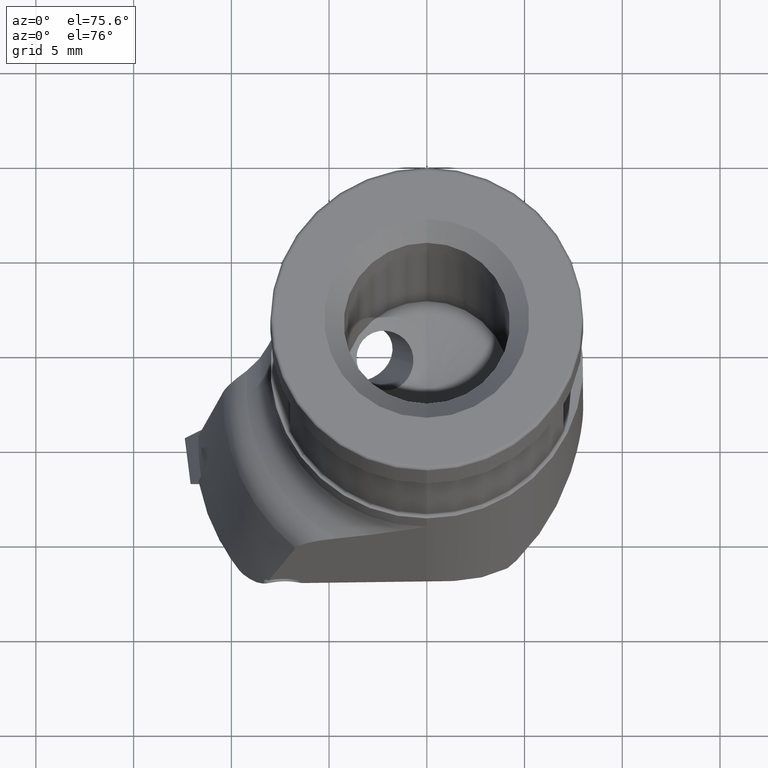
[diagram: clean part render]
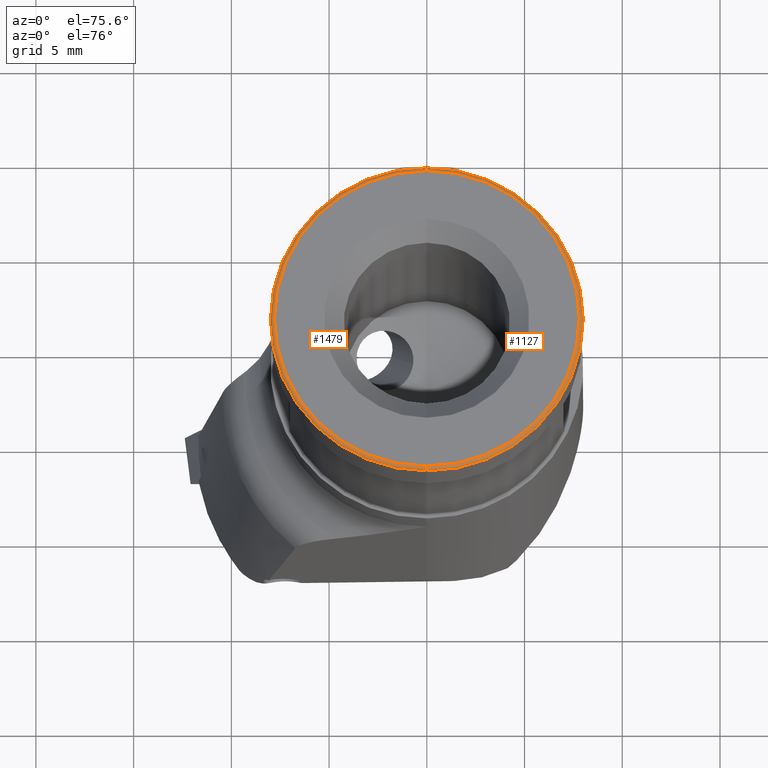
[diagram: same view with one multi-face feature highlighted, each face labeled with its STEP entity id]
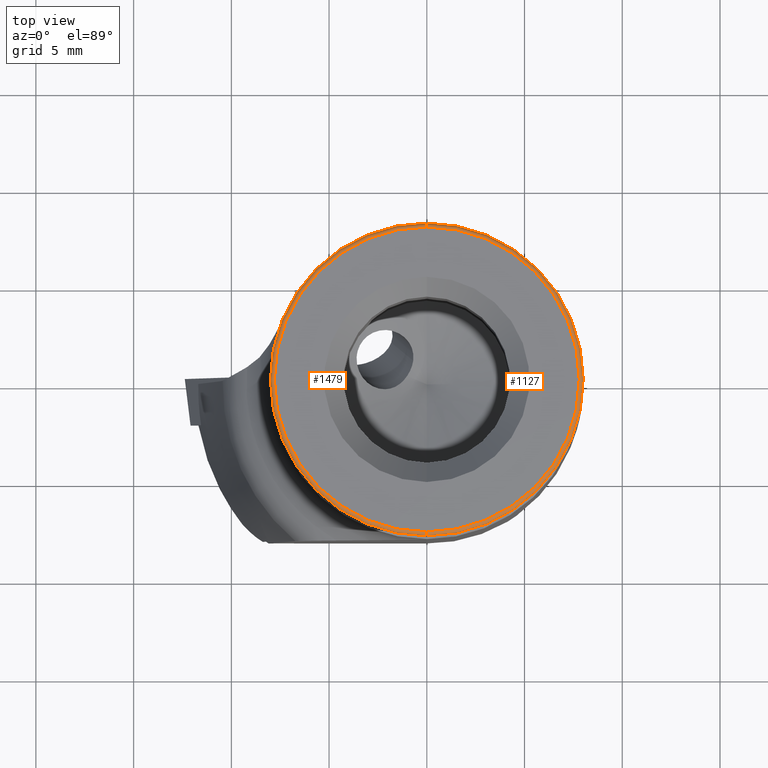
[diagram: same view with one multi-face feature highlighted, each face labeled with its STEP entity id]
A machine part, auxiliary view. The highlighted faces form ONE feature: a constant-radius fillet chain: 2 tangent blend faces with common blend radius 0.2 mm. The faces share edges in the B-rep.
A second angle (top view) of the same feature is appended — it is thin or edge-on in the first view.
Their STEP definitions:
[1] entity #1127 (Torus):
#763=VERTEX_POINT('NONE',#2096);
#767=EDGE_CURVE('NONE',#779,#1323,#2100,.T.);
#779=VERTEX_POINT('NONE',#2113);
#1127=ADVANCED_FACE('NONE',(#2495),#2496,.T.);
#1277=VERTEX_POINT('NONE',#2665);
#1323=VERTEX_POINT('NONE',#2715);
#1379=EDGE_CURVE('NONE',#763,#779,#2778,.T.);
#1519=EDGE_CURVE('NONE',#1277,#763,#2935,.T.);
#1669=EDGE_CURVE('NONE',#1277,#1323,#3098,.T.);
#2096=CARTESIAN_POINT('',(-2.44929359829471E-017,-8.0,-0.2));
#2100=CIRCLE('',#3595,7.8);
#2113=CARTESIAN_POINT('',(0.0,-7.8,0.0));
#2495=FACE_OUTER_BOUND('',#4833,.T.);
#2496=TOROIDAL_SURFACE('',#4834,7.8,0.2);
#2665=CARTESIAN_POINT('',(9.55224503334935E-016,8.0,-0.2));
#2715=CARTESIAN_POINT('',(9.67470971326409E-016,7.8,-1.18481022830287E-031));
#2778=CIRCLE('',#5372,0.2);
#2935=CIRCLE('',#5677,8.0);
#3098=CIRCLE('',#5997,0.2);
#3595=AXIS2_PLACEMENT_3D('',#6828,#6829,#6830);
#4833=EDGE_LOOP('',(#7303,#7304,#7305,#7306));
#4834=AXIS2_PLACEMENT_3D('',#7307,#7308,#7309);
#5372=AXIS2_PLACEMENT_3D('',#7644,#7645,#7646);
#5677=AXIS2_PLACEMENT_3D('',#7853,#7854,#7855);
#5997=AXIS2_PLACEMENT_3D('',#8035,#8036,#8037);
#6828=CARTESIAN_POINT('',(0.0,0.0,0.0));
#6829=DIRECTION('',(1.22464679914735E-016,-0.0,1.0));
#6830=DIRECTION('',(0.0,1.0,0.0));
#7303=ORIENTED_EDGE('',*,*,#1519,.F.);
#7304=ORIENTED_EDGE('',*,*,#1669,.T.);
#7305=ORIENTED_EDGE('',*,*,#767,.F.);
#7306=ORIENTED_EDGE('',*,*,#1379,.F.);
#7307=CARTESIAN_POINT('',(-2.44929359829471E-017,0.0,-0.2));
#7308=DIRECTION('',(1.22464679914735E-016,0.0,1.0));
#7309=DIRECTION('',(0.0,-1.0,0.0));
#7644=CARTESIAN_POINT('',(-2.44929359829471E-017,-7.8,-0.2));
#7645=DIRECTION('',(-1.0,0.0,1.22464679914735E-016));
#7646=DIRECTION('',(0.0,1.0,0.0));
#7853=CARTESIAN_POINT('',(-2.44929359829471E-017,0.0,-0.2));
#7854=DIRECTION('',(-1.22464679914735E-016,-0.0,-1.0));
#7855=DIRECTION('',(0.0,-1.0,0.0));
#8035=CARTESIAN_POINT('',(9.30731567351989E-016,7.8,-0.2));
#8036=DIRECTION('',(1.0,-1.22464679914736E-016,-1.22464679914735E-016));
#8037=DIRECTION('',(-1.22464679914736E-016,-1.0,1.49975978266186E-032));
[2] entity #1479 (Torus):
#763=VERTEX_POINT('NONE',#2096);
#779=VERTEX_POINT('NONE',#2113);
#811=EDGE_CURVE('NONE',#1323,#779,#2145,.T.);
#1277=VERTEX_POINT('NONE',#2665);
#1279=EDGE_CURVE('NONE',#763,#1277,#2667,.T.);
#1323=VERTEX_POINT('NONE',#2715);
#1379=EDGE_CURVE('NONE',#763,#779,#2778,.T.);
#1479=ADVANCED_FACE('NONE',(#2889),#2890,.T.);
#1669=EDGE_CURVE('NONE',#1277,#1323,#3098,.T.);
#2096=CARTESIAN_POINT('',(-2.44929359829471E-017,-8.0,-0.2));
#2113=CARTESIAN_POINT('',(0.0,-7.8,0.0));
#2145=CIRCLE('',#3661,7.8);
#2665=CARTESIAN_POINT('',(9.55224503334935E-016,8.0,-0.2));
#2667=CIRCLE('',#5179,8.0);
#2715=CARTESIAN_POINT('',(9.67470971326409E-016,7.8,-1.18481022830287E-031));
#2778=CIRCLE('',#5372,0.2);
#2889=FACE_OUTER_BOUND('',#5621,.T.);
#2890=TOROIDAL_SURFACE('',#5622,7.8,0.2);
#3098=CIRCLE('',#5997,0.2);
#3661=AXIS2_PLACEMENT_3D('',#6858,#6859,#6860);
#5179=AXIS2_PLACEMENT_3D('',#7511,#7512,#7513);
#5372=AXIS2_PLACEMENT_3D('',#7644,#7645,#7646);
#5621=EDGE_LOOP('',(#7786,#7787,#7788,#7789));
#5622=AXIS2_PLACEMENT_3D('',#7790,#7791,#7792);
#5997=AXIS2_PLACEMENT_3D('',#8035,#8036,#8037);
#6858=CARTESIAN_POINT('',(0.0,0.0,0.0));
#6859=DIRECTION('',(1.22464679914735E-016,-0.0,1.0));
#6860=DIRECTION('',(0.0,1.0,0.0));
#7511=CARTESIAN_POINT('',(-2.44929359829471E-017,0.0,-0.2));
#7512=DIRECTION('',(-1.22464679914735E-016,-0.0,-1.0));
#7513=DIRECTION('',(0.0,-1.0,0.0));
#7644=CARTESIAN_POINT('',(-2.44929359829471E-017,-7.8,-0.2));
#7645=DIRECTION('',(-1.0,0.0,1.22464679914735E-016));
#7646=DIRECTION('',(0.0,1.0,0.0));
#7786=ORIENTED_EDGE('',*,*,#1669,.F.);
#7787=ORIENTED_EDGE('',*,*,#1279,.F.);
#7788=ORIENTED_EDGE('',*,*,#1379,.T.);
#7789=ORIENTED_EDGE('',*,*,#811,.F.);
#7790=CARTESIAN_POINT('',(-2.44929359829471E-017,0.0,-0.2));
#7791=DIRECTION('',(1.22464679914735E-016,0.0,1.0));
#7792=DIRECTION('',(0.0,-1.0,0.0));
#8035=CARTESIAN_POINT('',(9.30731567351989E-016,7.8,-0.2));
#8036=DIRECTION('',(1.0,-1.22464679914736E-016,-1.22464679914735E-016));
#8037=DIRECTION('',(-1.22464679914736E-016,-1.0,1.49975978266186E-032));